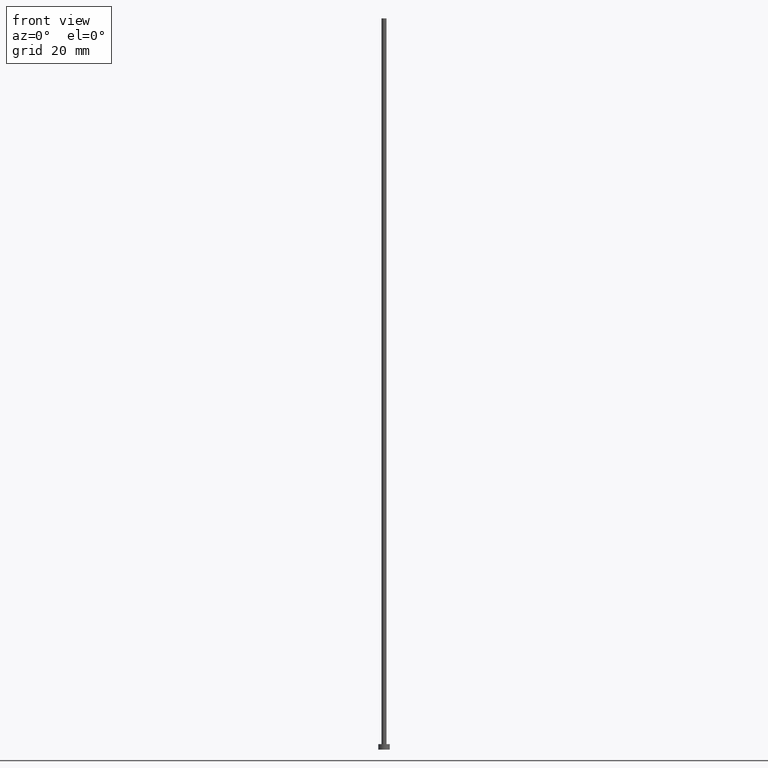
[diagram: clean part render]
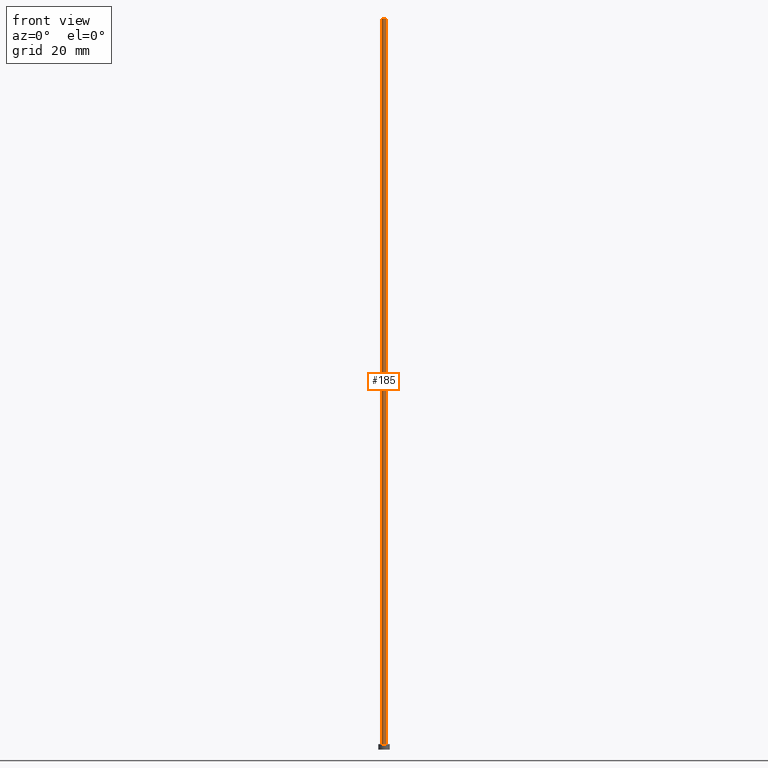
[diagram: same view with one face highlighted and labeled with its STEP entity id]
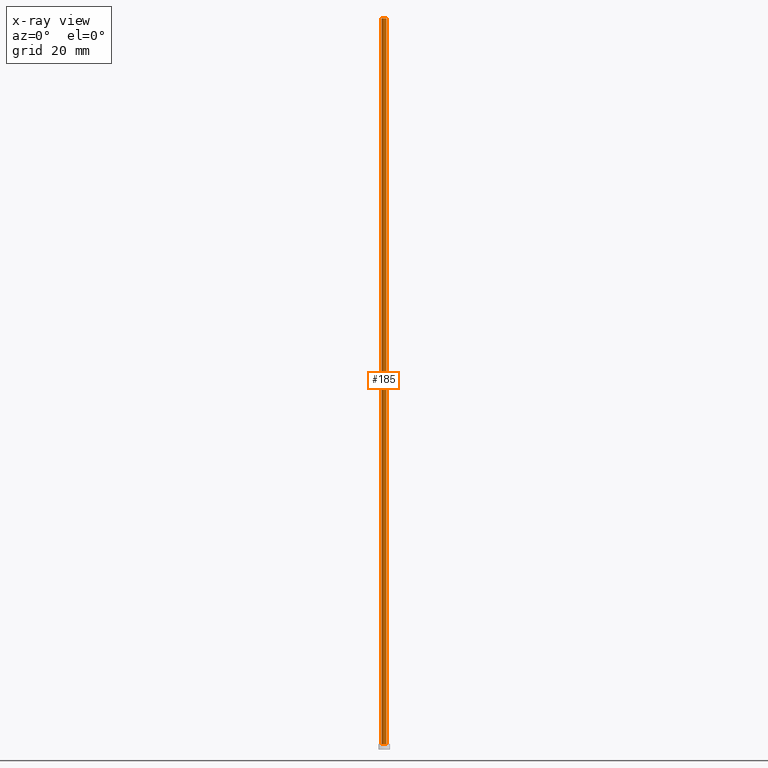
[diagram: x-ray of the same camera — body ghosted, the highlighted face saturated]
A machine part, front view. The second image highlights one B-rep face of the part: STEP entity #185.
The next image is the same camera in x-ray: the body ghosted, the highlighted face saturated — about 0% of this face is hidden behind the body in this view.
In plain terms, the highlighted cylindrical surface (edge-blend (fillet) strip) has radius 0.55 mm, axis along (-0, -0, -1).
Its self-contained STEP definition (entity closure, byte-faithful):
#2 = DIRECTION ( 'NONE',  ( 1.000000000000000000, 0.000000000000000000, 0.000000000000000000 ) ) ;
#14 = DIRECTION ( 'NONE',  ( -0.000000000000000000, -0.000000000000000000, -1.000000000000000000 ) ) ;
#16 = CARTESIAN_POINT ( 'NONE',  ( 0.000000000000000000, 0.000000000000000000, 160.0000000000000284 ) ) ;
#22 = EDGE_CURVE ( 'NONE', #95, #31, #127, .T. ) ;
#26 = EDGE_CURVE ( 'NONE', #31, #99, #247, .T. ) ;
#27 = VERTEX_POINT ( 'NONE', #94 ) ;
#31 = VERTEX_POINT ( 'NONE', #69 ) ;
#33 = DIRECTION ( 'NONE',  ( -1.000000000000000000, 0.000000000000000000, 0.000000000000000000 ) ) ;
#48 = AXIS2_PLACEMENT_3D ( 'NONE', #214, #113, #2 ) ;
#50 = ORIENTED_EDGE ( 'NONE', *, *, #22, .T. ) ;
#57 = ORIENTED_EDGE ( 'NONE', *, *, #189, .F. ) ;
#67 = DIRECTION ( 'NONE',  ( -0.000000000000000000, -0.000000000000000000, -1.000000000000000000 ) ) ;
#69 = CARTESIAN_POINT ( 'NONE',  ( -0.5500000000000000444, 0.000000000000000000, 1.199999999999999956 ) ) ;
#70 = DIRECTION ( 'NONE',  ( 0.000000000000000000, 0.000000000000000000, 1.000000000000000000 ) ) ;
#79 = CYLINDRICAL_SURFACE ( 'NONE', #90, 0.5500000000000000444 ) ;
#90 = AXIS2_PLACEMENT_3D ( 'NONE', #16, #14, #33 ) ;
#92 = CARTESIAN_POINT ( 'NONE',  ( -0.5500000000000000444, 0.000000000000000000, 160.0000000000000284 ) ) ;
#94 = CARTESIAN_POINT ( 'NONE',  ( 0.5500000000000000444, 6.735557395310442516E-17, 160.0000000000000284 ) ) ;
#95 = VERTEX_POINT ( 'NONE', #92 ) ;
#99 = VERTEX_POINT ( 'NONE', #176 ) ;
#112 = CARTESIAN_POINT ( 'NONE',  ( 0.000000000000000000, 0.000000000000000000, 1.199999999999999956 ) ) ;
#113 = DIRECTION ( 'NONE',  ( 0.000000000000000000, 0.000000000000000000, 1.000000000000000000 ) ) ;
#127 = LINE ( 'NONE', #174, #140 ) ;
#140 = VECTOR ( 'NONE', #67, 1000.000000000000000 ) ;
#155 = ORIENTED_EDGE ( 'NONE', *, *, #170, .F. ) ;
#160 = EDGE_LOOP ( 'NONE', ( #155, #57, #50, #182 ) ) ;
#166 = CIRCLE ( 'NONE', #48, 0.5500000000000000444 ) ;
#170 = EDGE_CURVE ( 'NONE', #27, #99, #253, .T. ) ;
#171 = AXIS2_PLACEMENT_3D ( 'NONE', #112, #70, #229 ) ;
#174 = CARTESIAN_POINT ( 'NONE',  ( -0.5500000000000000444, 0.000000000000000000, 160.0000000000000284 ) ) ;
#176 = CARTESIAN_POINT ( 'NONE',  ( 0.5500000000000000444, 6.735557395310442516E-17, 1.199999999999999956 ) ) ;
#177 = CARTESIAN_POINT ( 'NONE',  ( 0.5500000000000000444, 6.735557395310442516E-17, 160.0000000000000284 ) ) ;
#182 = ORIENTED_EDGE ( 'NONE', *, *, #26, .T. ) ;
#185 = ADVANCED_FACE ( 'NONE', ( #199 ), #79, .T. ) ;
#189 = EDGE_CURVE ( 'NONE', #95, #27, #166, .T. ) ;
#195 = VECTOR ( 'NONE', #234, 1000.000000000000000 ) ;
#199 = FACE_OUTER_BOUND ( 'NONE', #160, .T. ) ;
#214 = CARTESIAN_POINT ( 'NONE',  ( 0.000000000000000000, 0.000000000000000000, 160.0000000000000284 ) ) ;
#229 = DIRECTION ( 'NONE',  ( 1.000000000000000000, 0.000000000000000000, 0.000000000000000000 ) ) ;
#234 = DIRECTION ( 'NONE',  ( -0.000000000000000000, -0.000000000000000000, -1.000000000000000000 ) ) ;
#247 = CIRCLE ( 'NONE', #171, 0.5500000000000000444 ) ;
#253 = LINE ( 'NONE', #177, #195 ) ;